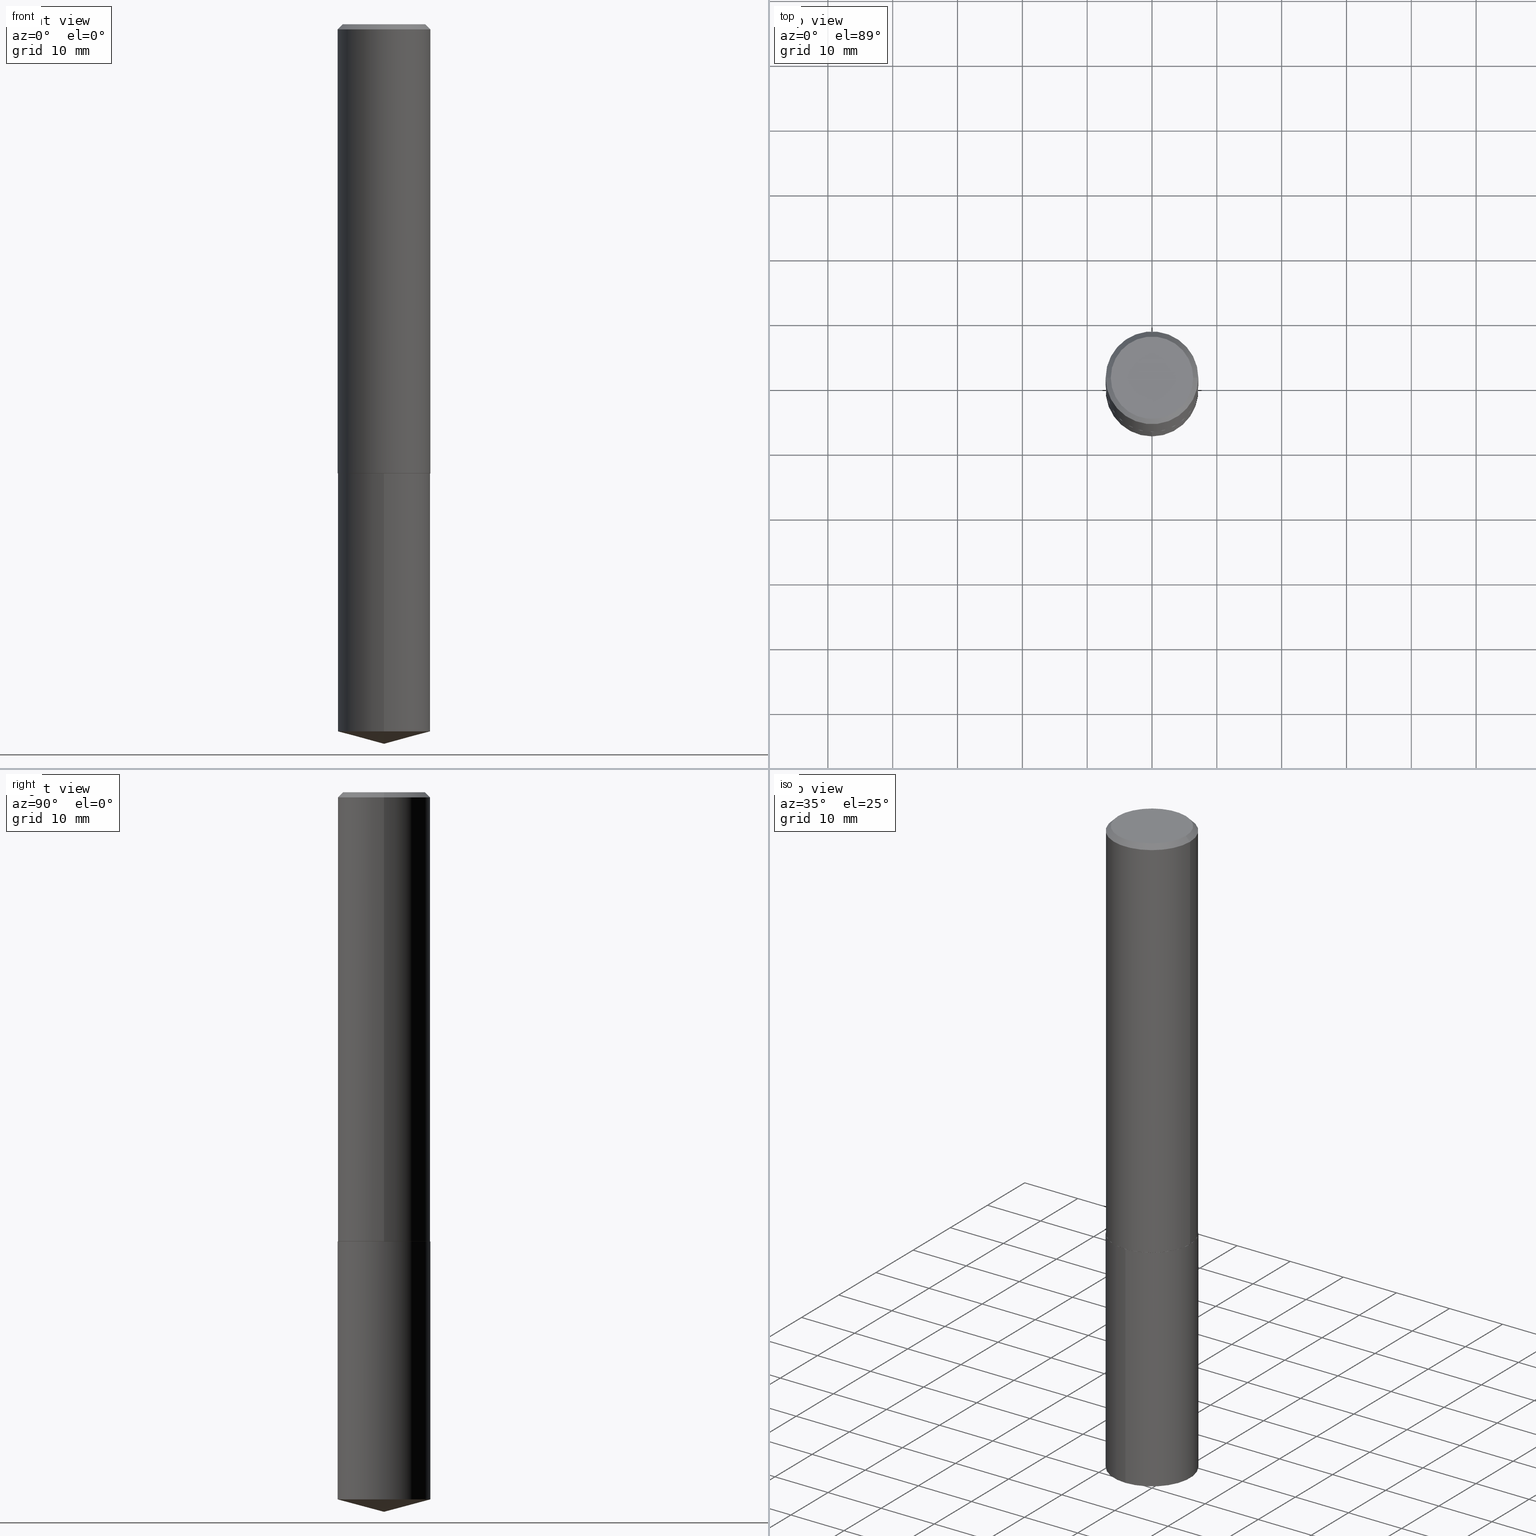
[diagram: canonical four-view strip — front | top / right | iso, engineering-drawing reading convention]
A machine part, canonical four-view strip (front | top / right | iso — engineering-drawing reading convention). The complete STEP part file that produces these views, byte-faithful:
ISO-10303-21;
HEADER;
FILE_DESCRIPTION (( 'STEP AP203' ),
    '1' );
FILE_NAME ('69051.STEP',
    '2024-04-23T14:41:40',
    ( '' ),
    ( '' ),
    'SwSTEP 2.0',
    'SolidWorks 2023',
    '' );
FILE_SCHEMA (( 'CONFIG_CONTROL_DESIGN' ));
ENDSEC;

DATA;
#1 = AXIS2_PLACEMENT_3D ( 'NONE', #7, #262, #134 ) ;
#2 = DIRECTION ( 'NONE',  ( -2.445468806185136597E-29, 3.491481338843145583E-15, 1.000000000000000000 ) ) ;
#3 = ORIENTED_EDGE ( 'NONE', *, *, #385, .T. ) ;
#4 = EDGE_CURVE ( 'NONE', #86, #69, #113, .T. ) ;
#5 = FACE_OUTER_BOUND ( 'NONE', #210, .T. ) ;
#6 = EDGE_LOOP ( 'NONE', ( #276, #297, #321, #130 ) ) ;
#7 = CARTESIAN_POINT ( 'NONE',  ( 6.672217090795527604E-29, -9.526157684899640905E-15, -2.728400000000000158 ) ) ;
#8 = DIRECTION ( 'NONE',  ( 1.000000000000000000, -6.982962677686265922E-15, 4.876176775795935793E-29 ) ) ;
#9 = CIRCLE ( 'NONE', #259, 0.2815000000000003055 ) ;
#10 = ORIENTED_EDGE ( 'NONE', *, *, #344, .F. ) ;
#11 = DIRECTION ( 'NONE',  ( -0.7071067811865452413, 2.468850131082233000E-15, -0.7071067811865497932 ) ) ;
#12 = DIRECTION ( 'NONE',  ( 2.445468806185136597E-29, -3.491481338843145583E-15, -1.000000000000000000 ) ) ;
#13 = EDGE_LOOP ( 'NONE', ( #50, #159, #10, #136 ) ) ;
#14 = CARTESIAN_POINT ( 'NONE',  ( -8.834764860432524555E-48, 1.261370276539608758E-33, 3.612708057484696673E-19 ) ) ;
#15 = AXIS2_PLACEMENT_3D ( 'NONE', #346, #114, #107 ) ;
#16 = PERSON_AND_ORGANIZATION ( #179, #362 ) ;
#17 = ORIENTED_EDGE ( 'NONE', *, *, #49, .F. ) ;
#18 = CARTESIAN_POINT ( 'NONE',  ( 2.000177801164786352E-15, 0.2814999999999849289, -4.294672302330640790 ) ) ;
#19 = ORIENTED_EDGE ( 'NONE', *, *, #238, .F. ) ;
#20 = EDGE_LOOP ( 'NONE', ( #208, #152, #140, #96 ) ) ;
#21 = MECHANICAL_CONTEXT ( 'NONE', #98, 'mechanical' ) ;
#22 = PRODUCT_DEFINITION_SHAPE ( 'NONE', 'NONE',  #151 ) ;
#23 = ORIENTED_EDGE ( 'NONE', *, *, #254, .T. ) ;
#24 = CARTESIAN_POINT ( 'NONE',  ( 0.2810000000000007492, -1.148837019732948507E-14, -2.728399999999999714 ) ) ;
#25 = PRODUCT_RELATED_PRODUCT_CATEGORY ( 'detail', '', ( #289 ) ) ;
#26 = LOCAL_TIME ( 10, 41, 40.00000000000000000, #300 ) ;
#27 = LINE ( 'NONE', #386, #250 ) ;
#28 =( NAMED_UNIT ( * ) PLANE_ANGLE_UNIT ( ) SI_UNIT ( $, .RADIAN. ) );
#29 = DIMENSIONAL_EXPONENTS ( 1.000000000000000000, 0.000000000000000000, 0.000000000000000000, 0.000000000000000000, 0.000000000000000000, 0.000000000000000000, 0.000000000000000000 ) ;
#30 = AXIS2_PLACEMENT_3D ( 'NONE', #231, #351, #87 ) ;
#31 = CC_DESIGN_SECURITY_CLASSIFICATION ( #218, ( #180 ) ) ;
#32 = EDGE_CURVE ( 'NONE', #337, #255, #216, .T. ) ;
#33 = CARTESIAN_POINT ( 'NONE',  ( 6.670994356392434802E-29, -9.524411944230218613E-15, -2.727899999999999991 ) ) ;
#34 = ORIENTED_EDGE ( 'NONE', *, *, #304, .F. ) ;
#35 = CC_DESIGN_PERSON_AND_ORGANIZATION_ASSIGNMENT ( #16, #303, ( #218 ) ) ;
#36 = PLANE ( 'NONE',  #126 ) ;
#37 = AXIS2_PLACEMENT_3D ( 'NONE', #243, #368, #162 ) ;
#38 = CARTESIAN_POINT ( 'NONE',  ( -1.965703993768578309E-15, -0.2815000000000149605, -4.294672302330638125 ) ) ;
#39 = ORIENTED_EDGE ( 'NONE', *, *, #32, .F. ) ;
#40 = ADVANCED_FACE ( 'NONE', ( #263 ), #83, .F. ) ;
#41 = DIRECTION ( 'NONE',  ( 1.000000000000000000, -6.982962677686265922E-15, 4.876176775795935793E-29 ) ) ;
#42 = ORIENTED_EDGE ( 'NONE', *, *, #183, .T. ) ;
#43 = CARTESIAN_POINT ( 'NONE',  ( 7.642090019328603538E-31, -1.091087918388490390E-16, -0.03125000000000021511 ) ) ;
#44 = VECTOR ( 'NONE', #260, 39.37007874015748143 ) ;
#45 = EDGE_LOOP ( 'NONE', ( #168, #342, #190, #121 ) ) ;
#46 = PERSON_AND_ORGANIZATION ( #179, #362 ) ;
#47 = FACE_OUTER_BOUND ( 'NONE', #13, .T. ) ;
#48 = CARTESIAN_POINT ( 'NONE',  ( -0.2814999999999999725, 1.856595201929834915E-15, -0.03125000000000021511 ) ) ;
#49 = EDGE_CURVE ( 'NONE', #77, #222, #296, .T. ) ;
#50 = ORIENTED_EDGE ( 'NONE', *, *, #84, .T. ) ;
#51 = PERSON_AND_ORGANIZATION ( #179, #362 ) ;
#52 = CARTESIAN_POINT ( 'NONE',  ( -0.2815000000000003055, -7.524234143065534418E-15, -2.727899999999999991 ) ) ;
#53 = AXIS2_PLACEMENT_3D ( 'NONE', #144, #81, #204 ) ;
#54 = PERSON_AND_ORGANIZATION_ROLE ( 'design_supplier' ) ;
#55 = CARTESIAN_POINT ( 'NONE',  ( 0.000000000000000000, 0.000000000000000000, 0.000000000000000000 ) ) ;
#56 = CARTESIAN_POINT ( 'NONE',  ( 7.642090019328603538E-31, -1.091087918388490390E-16, -0.03125000000000021511 ) ) ;
#57 = VECTOR ( 'NONE', #315, 39.37007874015748143 ) ;
#58 = EDGE_CURVE ( 'NONE', #337, #182, #131, .T. ) ;
#59 = ADVANCED_FACE ( 'NONE', ( #223 ), #217, .T. ) ;
#60 = CARTESIAN_POINT ( 'NONE',  ( -1.766952972086504911E-47, 2.522740553079217515E-33, 7.225416114969393346E-19 ) ) ;
#61 = AXIS2_PLACEMENT_3D ( 'NONE', #283, #232, #145 ) ;
#62 = AXIS2_PLACEMENT_3D ( 'NONE', #55, #91, #206 ) ;
#63 = CC_DESIGN_APPROVAL ( #135, ( #180 ) ) ;
#64 = DIRECTION ( 'NONE',  ( -2.445468806185136597E-29, 3.491481338843145583E-15, 1.000000000000000000 ) ) ;
#65 = CC_DESIGN_PERSON_AND_ORGANIZATION_ASSIGNMENT ( #139, #170, ( #180 ) ) ;
#66 = CARTESIAN_POINT ( 'NONE',  ( 0.000000000000000000, 0.000000000000000000, 0.000000000000000000 ) ) ;
#67 = DATE_TIME_ROLE ( 'classification_date' ) ;
#68 = DIRECTION ( 'NONE',  ( -2.445468806185136597E-29, 3.491481338843145583E-15, 1.000000000000000000 ) ) ;
#69 = VERTEX_POINT ( 'NONE', #281 ) ;
#70 = ORIENTED_EDGE ( 'NONE', *, *, #356, .T. ) ;
#71 = CONICAL_SURFACE ( 'NONE', #340, 0.2815000000000003055, 0.7853981633973459164 ) ;
#72 = CONICAL_SURFACE ( 'NONE', #324, 146.9311341562563484, 1.308996938995749426 ) ;
#73 = DIRECTION ( 'NONE',  ( -2.445355825187269101E-29, 3.491643134062571246E-15, 1.000000000000000000 ) ) ;
#74 = MANIFOLD_SOLID_BREP ( 'Body-Move/Copy2[1]', #369 ) ;
#75 = ORIENTED_EDGE ( 'NONE', *, *, #49, .T. ) ;
#76 = CARTESIAN_POINT ( 'NONE',  ( -0.2810000000000007492, -7.526883370239641675E-15, -2.728399999999999714 ) ) ;
#77 = VERTEX_POINT ( 'NONE', #38 ) ;
#78 = DIRECTION ( 'NONE',  ( -6.982962677686265922E-15, -1.000000000000000000, 3.510303681827608484E-15 ) ) ;
#79 = CALENDAR_DATE ( 2024, 23, 4 ) ;
#80 = CIRCLE ( 'NONE', #37, 0.2815000000000003055 ) ;
#81 = DIRECTION ( 'NONE',  ( -2.445355825187268821E-29, 3.491643134062571246E-15, 1.000000000000000000 ) ) ;
#82 = CC_DESIGN_APPROVAL ( #165, ( #151 ) ) ;
#83 = PLANE ( 'NONE',  #198 ) ;
#84 = EDGE_CURVE ( 'NONE', #182, #279, #80, .T. ) ;
#85 = FACE_OUTER_BOUND ( 'NONE', #150, .T. ) ;
#86 = VERTEX_POINT ( 'NONE', #129 ) ;
#87 = DIRECTION ( 'NONE',  ( -6.982962677686265922E-15, -1.000000000000000000, 3.881844395970533976E-15 ) ) ;
#88 = COORDINATED_UNIVERSAL_TIME_OFFSET ( 5, 0, .BEHIND. ) ;
#89 = EDGE_CURVE ( 'NONE', #86, #233, #309, .T. ) ;
#90 = CONICAL_SURFACE ( 'NONE', #118, 0.2814999999999999725, 0.7853981633974450594 ) ;
#91 = DIRECTION ( 'NONE',  ( 0.000000000000000000, 0.000000000000000000, 1.000000000000000000 ) ) ;
#92 = EDGE_LOOP ( 'NONE', ( #349, #23 ) ) ;
#93 = PERSON_AND_ORGANIZATION ( #179, #362 ) ;
#94 = LENGTH_MEASURE_WITH_UNIT ( LENGTH_MEASURE( 0.02539999999999999897 ), #327 );
#95 = CLOSED_SHELL ( 'NONE', ( #147, #271, #109, #40, #268, #117, #220, #274 ) ) ;
#96 = ORIENTED_EDGE ( 'NONE', *, *, #304, .T. ) ;
#97 = APPLICATION_CONTEXT ( 'configuration controlled 3d designs of mechanical parts and assemblies' ) ;
#98 = APPLICATION_CONTEXT ( 'configuration controlled 3d designs of mechanical parts and assemblies' ) ;
#99 = AXIS2_PLACEMENT_3D ( 'NONE', #299, #269, #146 ) ;
#100 = APPROVAL_PERSON_ORGANIZATION ( #125, #330, #157 ) ;
#101 = CARTESIAN_POINT ( 'NONE',  ( 6.670994356392434802E-29, -9.524411944230218613E-15, -2.727899999999999991 ) ) ;
#102 = DIRECTION ( 'NONE',  ( 2.445468806185136597E-29, -3.491481338843145583E-15, -1.000000000000000000 ) ) ;
#103 = DIRECTION ( 'NONE',  ( 2.445355825187268541E-29, -3.491643134062571246E-15, -1.000000000000000000 ) ) ;
#104 = DIRECTION ( 'NONE',  ( -2.445355825187268821E-29, 3.491643134062571246E-15, 1.000000000000000000 ) ) ;
#105 = PLANE ( 'NONE',  #333 ) ;
#106 = CARTESIAN_POINT ( 'NONE',  ( 1.050231018912923150E-28, -1.499502161540478992E-14, -4.294672302330639901 ) ) ;
#107 = DIRECTION ( 'NONE',  ( -6.982962677686265922E-15, -1.000000000000000000, 3.881844395970533976E-15 ) ) ;
#108 = ORIENTED_EDGE ( 'NONE', *, *, #356, .F. ) ;
#109 = ADVANCED_FACE ( 'NONE', ( #5 ), #71, .T. ) ;
#110 = CYLINDRICAL_SURFACE ( 'NONE', #242, 0.2815000000000001390 ) ;
#111 = AXIS2_PLACEMENT_3D ( 'NONE', #286, #12, #288 ) ;
#112 = DIRECTION ( 'NONE',  ( -2.445355825187269101E-29, 3.491643134062571246E-15, 1.000000000000000000 ) ) ;
#113 = LINE ( 'NONE', #257, #301 ) ;
#114 = DIRECTION ( 'NONE',  ( -2.445355825187268821E-29, 3.491643134062571246E-15, 1.000000000000000000 ) ) ;
#115 = COORDINATED_UNIVERSAL_TIME_OFFSET ( 5, 0, .BEHIND. ) ;
#116 = CIRCLE ( 'NONE', #99, 0.2502499999999999725 ) ;
#117 = ADVANCED_FACE ( 'NONE', ( #155 ), #219, .T. ) ;
#118 = AXIS2_PLACEMENT_3D ( 'NONE', #275, #102, #339 ) ;
#119 = EDGE_CURVE ( 'NONE', #222, #77, #191, .T. ) ;
#120 = DIRECTION ( 'NONE',  ( -6.982962677686265922E-15, -1.000000000000000000, 3.510303681827608484E-15 ) ) ;
#121 = ORIENTED_EDGE ( 'NONE', *, *, #154, .F. ) ;
#122 = ORIENTED_EDGE ( 'NONE', *, *, #212, .F. ) ;
#123 = DIRECTION ( 'NONE',  ( 1.000000000000000000, -6.982962677686265922E-15, 4.876176775795935793E-29 ) ) ;
#124 = EDGE_LOOP ( 'NONE', ( #122, #354, #316, #34 ) ) ;
#125 = PERSON_AND_ORGANIZATION ( #179, #362 ) ;
#126 = AXIS2_PLACEMENT_3D ( 'NONE', #158, #103, #221 ) ;
#127 = FACE_OUTER_BOUND ( 'NONE', #92, .T. ) ;
#128 = EDGE_CURVE ( 'NONE', #182, #69, #272, .T. ) ;
#129 = CARTESIAN_POINT ( 'NONE',  ( 0.2502499999999999725, -1.878589301076930179E-15, 7.225416115096182129E-19 ) ) ;
#130 = ORIENTED_EDGE ( 'NONE', *, *, #254, .F. ) ;
#131 = LINE ( 'NONE', #225, #387 ) ;
#132 = ORIENTED_EDGE ( 'NONE', *, *, #89, .T. ) ;
#133 = LINE ( 'NONE', #169, #44 ) ;
#134 = DIRECTION ( 'NONE',  ( -6.982962677686265922E-15, -1.000000000000000000, 3.881844395970533976E-15 ) ) ;
#135 = APPROVAL ( #287, 'UNSPECIFIED' ) ;
#136 = ORIENTED_EDGE ( 'NONE', *, *, #128, .F. ) ;
#137 = CARTESIAN_POINT ( 'NONE',  ( 6.672217090795526483E-29, -9.526157684899637750E-15, -2.728399999999999714 ) ) ;
#138 = ORIENTED_EDGE ( 'NONE', *, *, #310, .F. ) ;
#139 = PERSON_AND_ORGANIZATION ( #179, #362 ) ;
#140 = ORIENTED_EDGE ( 'NONE', *, *, #310, .T. ) ;
#141 = UNCERTAINTY_MEASURE_WITH_UNIT (LENGTH_MEASURE( 1.000000000000000082E-05 ), #384, 'distance_accuracy_value', 'NONE');
#142 = AXIS2_PLACEMENT_3D ( 'NONE', #60, #68, #277 ) ;
#143 = LINE ( 'NONE', #253, #57 ) ;
#144 = CARTESIAN_POINT ( 'NONE',  ( 6.672217090795527604E-29, -9.526157684899640905E-15, -2.728400000000000158 ) ) ;
#145 = DIRECTION ( 'NONE',  ( 1.000000000000000000, -6.982962677686269077E-15, 0.000000000000000000 ) ) ;
#146 = DIRECTION ( 'NONE',  ( 1.000000000000000000, -6.982962677686266711E-15, 4.876199892921953804E-29 ) ) ;
#147 = ADVANCED_FACE ( 'NONE', ( #367 ), #90, .T. ) ;
#148 = AXIS2_PLACEMENT_3D ( 'NONE', #137, #256, #228 ) ;
#149 = LOCAL_TIME ( 10, 41, 40.00000000000000000, #115 ) ;
#150 = EDGE_LOOP ( 'NONE', ( #108, #285, #213 ) ) ;
#151 = PRODUCT_DEFINITION ( 'UNKNOWN', '', #180, #352 ) ;
#152 = ORIENTED_EDGE ( 'NONE', *, *, #385, .F. ) ;
#153 = AXIS2_PLACEMENT_3D ( 'NONE', #156, #104, #365 ) ;
#154 = EDGE_CURVE ( 'NONE', #279, #182, #9, .T. ) ;
#155 = FACE_OUTER_BOUND ( 'NONE', #124, .T. ) ;
#156 = CARTESIAN_POINT ( 'NONE',  ( 1.050231018912923150E-28, -1.499502161540478992E-14, -4.294672302330639901 ) ) ;
#157 = APPROVAL_ROLE ( '' ) ;
#158 = CARTESIAN_POINT ( 'NONE',  ( 6.672217090795527604E-29, -9.526157684899640905E-15, -2.728400000000000158 ) ) ;
#159 = ORIENTED_EDGE ( 'NONE', *, *, #212, .T. ) ;
#160 = CARTESIAN_POINT ( 'NONE',  ( 2.000177801164748486E-15, 0.2814999999999904801, -2.728400000000001491 ) ) ;
#161 = DATE_AND_TIME ( #163, #209 ) ;
#162 = DIRECTION ( 'NONE',  ( 1.000000000000000000, -6.982962677686264344E-15, 0.000000000000000000 ) ) ;
#163 = CALENDAR_DATE ( 2024, 23, 4 ) ;
#164 = DIRECTION ( 'NONE',  ( -2.445468806185136597E-29, 3.491481338843145583E-15, 1.000000000000000000 ) ) ;
#165 = APPROVAL ( #355, 'UNSPECIFIED' ) ;
#166 = VECTOR ( 'NONE', #112, 39.37007874015748143 ) ;
#167 = DIRECTION ( 'NONE',  ( 1.000000000000000000, -6.982962677686267499E-15, 0.000000000000000000 ) ) ;
#168 = ORIENTED_EDGE ( 'NONE', *, *, #203, .F. ) ;
#169 = CARTESIAN_POINT ( 'NONE',  ( -0.2815000000000003055, -7.524234143065534418E-15, -2.727899999999999991 ) ) ;
#170 = PERSON_AND_ORGANIZATION_ROLE ( 'creator' ) ;
#171 = ORIENTED_EDGE ( 'NONE', *, *, #84, .F. ) ;
#172 = LINE ( 'NONE', #380, #166 ) ;
#173 = SECURITY_CLASSIFICATION_LEVEL ( 'unclassified' ) ;
#174 = CARTESIAN_POINT ( 'NONE',  ( 1.068644949165088311E-28, -1.525882966016684285E-14, -4.370099999999999874 ) ) ;
#175 = ADVANCED_FACE ( 'NONE', ( #127 ), #36, .F. ) ;
#176 = DIRECTION ( 'NONE',  ( 1.000000000000000000, -6.982962677686267499E-15, 0.000000000000000000 ) ) ;
#177 = DIRECTION ( 'NONE',  ( -2.445468806185136597E-29, 3.491481338843145583E-15, 1.000000000000000000 ) ) ;
#178 = CC_DESIGN_PERSON_AND_ORGANIZATION_ASSIGNMENT ( #215, #357, ( #289 ) ) ;
#179 = PERSON ( 'UNSPECIFIED', 'UNSPECIFIED', 'UNSPECIFIED', ('UNSPECIFIED'), ('UNSPECIFIED'), ('UNSPECIFIED') ) ;
#180 = PRODUCT_DEFINITION_FORMATION_WITH_SPECIFIED_SOURCE ( 'ANY', '', #289, .NOT_KNOWN. ) ;
#181 = APPROVAL_ROLE ( '' ) ;
#182 = VERTEX_POINT ( 'NONE', #189 ) ;
#183 = EDGE_CURVE ( 'NONE', #222, #375, #308, .T. ) ;
#184 = ADVANCED_BREP_SHAPE_REPRESENTATION ( '69051', ( #74, #205, #62 ), #317 ) ;
#185 = AXIS2_PLACEMENT_3D ( 'NONE', #66, #2, #123 ) ;
#186 = DIRECTION ( 'NONE',  ( 1.000000000000000000, -6.982962677686264344E-15, 0.000000000000000000 ) ) ;
#187 = DIRECTION ( 'NONE',  ( -2.445468806185136597E-29, 3.491481338843145583E-15, 1.000000000000000000 ) ) ;
#188 = ADVANCED_FACE ( 'NONE', ( #193 ), #200, .T. ) ;
#189 = CARTESIAN_POINT ( 'NONE',  ( 0.2815000000000003055, -1.149011593799890421E-14, -2.727899999999999991 ) ) ;
#190 = ORIENTED_EDGE ( 'NONE', *, *, #58, .T. ) ;
#191 = CIRCLE ( 'NONE', #153, 0.2814999999999999725 ) ;
#192 = VERTEX_POINT ( 'NONE', #345 ) ;
#193 = FACE_OUTER_BOUND ( 'NONE', #360, .T. ) ;
#194 = DIRECTION ( 'NONE',  ( -6.745023994389841499E-15, -0.9659258262890679791, 0.2588190451025219607 ) ) ;
#195 = ORIENTED_EDGE ( 'NONE', *, *, #344, .T. ) ;
#196 = CARTESIAN_POINT ( 'NONE',  ( 6.670994356392434802E-29, -9.524411944230218613E-15, -2.727899999999999991 ) ) ;
#197 = EDGE_LOOP ( 'NONE', ( #314, #295, #195, #138 ) ) ;
#198 = AXIS2_PLACEMENT_3D ( 'NONE', #325, #382, #8 ) ;
#199 = APPROVAL_PERSON_ORGANIZATION ( #329, #165, #181 ) ;
#200 = CYLINDRICAL_SURFACE ( 'NONE', #1, 0.2814999999999999725 ) ;
#201 = DATE_TIME_ROLE ( 'creation_date' ) ;
#202 = DIRECTION ( 'NONE',  ( -2.445468806185136597E-29, 3.491481338843145583E-15, 1.000000000000000000 ) ) ;
#203 = EDGE_CURVE ( 'NONE', #255, #279, #133, .T. ) ;
#204 = DIRECTION ( 'NONE',  ( -6.982962677686265922E-15, -1.000000000000000000, 3.881844395970533976E-15 ) ) ;
#205 = MANIFOLD_SOLID_BREP ( 'Body-Move/Copy2[2]', #95 ) ;
#206 = DIRECTION ( 'NONE',  ( 1.000000000000000000, 0.000000000000000000, 0.000000000000000000 ) ) ;
#207 = AXIS2_PLACEMENT_3D ( 'NONE', #43, #202, #167 ) ;
#208 = ORIENTED_EDGE ( 'NONE', *, *, #4, .F. ) ;
#209 = LOCAL_TIME ( 10, 41, 40.00000000000000000, #280 ) ;
#210 = EDGE_LOOP ( 'NONE', ( #261, #245, #171, #373 ) ) ;
#211 = DATE_AND_TIME ( #241, #26 ) ;
#212 = EDGE_CURVE ( 'NONE', #279, #192, #143, .T. ) ;
#213 = ORIENTED_EDGE ( 'NONE', *, *, #119, .F. ) ;
#214 = CALENDAR_DATE ( 2024, 23, 4 ) ;
#215 = PERSON_AND_ORGANIZATION ( #179, #362 ) ;
#216 = CIRCLE ( 'NONE', #61, 0.2810000000000007492 ) ;
#217 = CONICAL_SURFACE ( 'NONE', #244, 146.9311341562563484, 1.308996938995749426 ) ;
#218 = SECURITY_CLASSIFICATION ( '', '', #173 ) ;
#219 = CYLINDRICAL_SURFACE ( 'NONE', #185, 0.2815000000000001390 ) ;
#220 = ADVANCED_FACE ( 'NONE', ( #374 ), #266, .T. ) ;
#221 = DIRECTION ( 'NONE',  ( 6.982962677686265922E-15, 1.000000000000000000, -3.491643134062571246E-15 ) ) ;
#222 = VERTEX_POINT ( 'NONE', #18 ) ;
#223 = FACE_OUTER_BOUND ( 'NONE', #265, .T. ) ;
#224 = VECTOR ( 'NONE', #389, 39.37007874015748143 ) ;
#225 = CARTESIAN_POINT ( 'NONE',  ( 0.2815000000000003055, -1.149011593799890421E-14, -2.727899999999999991 ) ) ;
#226 = CARTESIAN_POINT ( 'NONE',  ( -8.558709363632008561E-28, 1.222078769024835025E-13, 34.99997874015748067 ) ) ;
#227 = DATE_AND_TIME ( #214, #298 ) ;
#228 = DIRECTION ( 'NONE',  ( 1.000000000000000000, -6.982962677686269077E-15, 0.000000000000000000 ) ) ;
#229 = VECTOR ( 'NONE', #73, 39.37007874015748143 ) ;
#230 = FACE_OUTER_BOUND ( 'NONE', #363, .T. ) ;
#231 = CARTESIAN_POINT ( 'NONE',  ( 6.672217090795527604E-29, -9.526157684899640905E-15, -2.728400000000000158 ) ) ;
#232 = DIRECTION ( 'NONE',  ( -2.445468806185136597E-29, 3.491481338843145583E-15, 1.000000000000000000 ) ) ;
#233 = VERTEX_POINT ( 'NONE', #381 ) ;
#234 = APPROVAL_DATE_TIME ( #211, #165 ) ;
#235 = ORIENTED_EDGE ( 'NONE', *, *, #240, .F. ) ;
#236 = CARTESIAN_POINT ( 'NONE',  ( 2.000177801164787141E-15, 0.2814999999999904801, -2.728400000000001491 ) ) ;
#237 = CIRCLE ( 'NONE', #148, 0.2810000000000007492 ) ;
#238 = EDGE_CURVE ( 'NONE', #370, #375, #371, .T. ) ;
#239 = APPLICATION_PROTOCOL_DEFINITION ( 'international standard', 'config_control_design', 1994, #98 ) ;
#240 = EDGE_CURVE ( 'NONE', #255, #337, #237, .T. ) ;
#241 = CALENDAR_DATE ( 2024, 23, 4 ) ;
#242 = AXIS2_PLACEMENT_3D ( 'NONE', #251, #313, #41 ) ;
#243 = CARTESIAN_POINT ( 'NONE',  ( 6.670994356392434802E-29, -9.524411944230218613E-15, -2.727899999999999991 ) ) ;
#244 = AXIS2_PLACEMENT_3D ( 'NONE', #336, #305, #120 ) ;
#245 = ORIENTED_EDGE ( 'NONE', *, *, #203, .T. ) ;
#246 = CIRCLE ( 'NONE', #284, 0.2814999999999999725 ) ;
#247 = CC_DESIGN_PERSON_AND_ORGANIZATION_ASSIGNMENT ( #51, #54, ( #180 ) ) ;
#248 = CARTESIAN_POINT ( 'NONE',  ( 0.2815000000000001390, -1.965703993768684805E-15, 1.372643762386556638E-29 ) ) ;
#249 = DIRECTION ( 'NONE',  ( 0.7071067811864750752, -2.468850131081498176E-15, 0.7071067811866199593 ) ) ;
#250 = VECTOR ( 'NONE', #267, 39.37007874015748143 ) ;
#251 = CARTESIAN_POINT ( 'NONE',  ( 0.000000000000000000, 0.000000000000000000, 0.000000000000000000 ) ) ;
#252 = ORIENTED_EDGE ( 'NONE', *, *, #264, .F. ) ;
#253 = CARTESIAN_POINT ( 'NONE',  ( -0.2815000000000001390, 2.000177801164683011E-15, -1.384680227906756714E-29 ) ) ;
#254 = EDGE_CURVE ( 'NONE', #375, #370, #388, .T. ) ;
#255 = VERTEX_POINT ( 'NONE', #76 ) ;
#256 = DIRECTION ( 'NONE',  ( -2.445468806185136597E-29, 3.491481338843145583E-15, 1.000000000000000000 ) ) ;
#257 = CARTESIAN_POINT ( 'NONE',  ( 0.2814999999999999725, -2.040338978211535305E-15, -0.03125000000000021511 ) ) ;
#258 = VERTEX_POINT ( 'NONE', #174 ) ;
#259 = AXIS2_PLACEMENT_3D ( 'NONE', #101, #187, #306 ) ;
#260 = DIRECTION ( 'NONE',  ( -0.7071067811864750752, 7.493145998870092258E-15, 0.7071067811866199593 ) ) ;
#261 = ORIENTED_EDGE ( 'NONE', *, *, #32, .T. ) ;
#262 = DIRECTION ( 'NONE',  ( -2.445355825187268821E-29, 3.491643134062571246E-15, 1.000000000000000000 ) ) ;
#263 = FACE_OUTER_BOUND ( 'NONE', #278, .T. ) ;
#264 = EDGE_CURVE ( 'NONE', #258, #77, #343, .T. ) ;
#265 = EDGE_LOOP ( 'NONE', ( #252, #70, #17 ) ) ;
#266 = CONICAL_SURFACE ( 'NONE', #111, 0.2814999999999999725, 0.7853981633974450594 ) ;
#267 = DIRECTION ( 'NONE',  ( 6.863315791527695837E-15, 0.9659258262890698665, 0.2588190451025151884 ) ) ;
#268 = ADVANCED_FACE ( 'NONE', ( #377 ), #341, .T. ) ;
#269 = DIRECTION ( 'NONE',  ( -2.445468806185136597E-29, 3.491481338843145583E-15, 1.000000000000000000 ) ) ;
#270 = CC_DESIGN_APPROVAL ( #330, ( #218 ) ) ;
#271 = ADVANCED_FACE ( 'NONE', ( #47 ), #110, .T. ) ;
#272 = LINE ( 'NONE', #248, #224 ) ;
#273 = DATE_AND_TIME ( #364, #312 ) ;
#274 = ADVANCED_FACE ( 'NONE', ( #230 ), #105, .F. ) ;
#275 = CARTESIAN_POINT ( 'NONE',  ( 7.642090019328603538E-31, -1.091087918388490390E-16, -0.03125000000000021511 ) ) ;
#276 = ORIENTED_EDGE ( 'NONE', *, *, #183, .F. ) ;
#277 = DIRECTION ( 'NONE',  ( 1.000000000000000000, -6.982962677686266711E-15, 4.876199892921953804E-29 ) ) ;
#278 = EDGE_LOOP ( 'NONE', ( #39, #235 ) ) ;
#279 = VERTEX_POINT ( 'NONE', #52 ) ;
#280 = COORDINATED_UNIVERSAL_TIME_OFFSET ( 5, 0, .BEHIND. ) ;
#281 = CARTESIAN_POINT ( 'NONE',  ( 0.2814999999999999725, -2.074812785607533117E-15, -0.03125000000000021511 ) ) ;
#282 = DIRECTION ( 'NONE',  ( -2.445355825187268821E-29, 3.491643134062571246E-15, 1.000000000000000000 ) ) ;
#283 = CARTESIAN_POINT ( 'NONE',  ( 6.672217090795526483E-29, -9.526157684899637750E-15, -2.728399999999999714 ) ) ;
#284 = AXIS2_PLACEMENT_3D ( 'NONE', #56, #177, #176 ) ;
#285 = ORIENTED_EDGE ( 'NONE', *, *, #264, .T. ) ;
#286 = CARTESIAN_POINT ( 'NONE',  ( 7.642090019328603538E-31, -1.091087918388490390E-16, -0.03125000000000021511 ) ) ;
#287 = APPROVAL_STATUS ( 'not_yet_approved' ) ;
#288 = DIRECTION ( 'NONE',  ( -1.000000000000000000, 6.982962677686267499E-15, 0.000000000000000000 ) ) ;
#289 = PRODUCT ( '69051', '69051', '', ( #21 ) ) ;
#290 = ADVANCED_FACE ( 'NONE', ( #85 ), #72, .T. ) ;
#291 = ORIENTED_EDGE ( 'NONE', *, *, #318, .F. ) ;
#292 = CYLINDRICAL_SURFACE ( 'NONE', #30, 0.2814999999999999725 ) ;
#293 = VECTOR ( 'NONE', #194, 39.37007874015748143 ) ;
#294 = FACE_OUTER_BOUND ( 'NONE', #6, .T. ) ;
#295 = ORIENTED_EDGE ( 'NONE', *, *, #4, .T. ) ;
#296 = CIRCLE ( 'NONE', #378, 0.2814999999999999725 ) ;
#297 = ORIENTED_EDGE ( 'NONE', *, *, #119, .T. ) ;
#298 = LOCAL_TIME ( 10, 41, 40.00000000000000000, #88 ) ;
#299 = CARTESIAN_POINT ( 'NONE',  ( -1.766952972086504911E-47, 2.522740553079217515E-33, 7.225416114969393346E-19 ) ) ;
#300 = COORDINATED_UNIVERSAL_TIME_OFFSET ( 5, 0, .BEHIND. ) ;
#301 = VECTOR ( 'NONE', #347, 39.37007874015748143 ) ;
#302 = APPROVAL_PERSON_ORGANIZATION ( #46, #135, #376 ) ;
#303 = PERSON_AND_ORGANIZATION_ROLE ( 'classification_officer' ) ;
#304 = EDGE_CURVE ( 'NONE', #192, #69, #348, .T. ) ;
#305 = DIRECTION ( 'NONE',  ( -2.445355825187268821E-29, 3.491643134062571246E-15, 1.000000000000000000 ) ) ;
#306 = DIRECTION ( 'NONE',  ( 1.000000000000000000, -6.982962677686264344E-15, 0.000000000000000000 ) ) ;
#307 = SHAPE_DEFINITION_REPRESENTATION ( #22, #184 ) ;
#308 = LINE ( 'NONE', #160, #229 ) ;
#309 = CIRCLE ( 'NONE', #142, 0.2502499999999999725 ) ;
#310 = EDGE_CURVE ( 'NONE', #233, #192, #322, .T. ) ;
#311 = COORDINATED_UNIVERSAL_TIME_OFFSET ( 5, 0, .BEHIND. ) ;
#312 = LOCAL_TIME ( 10, 41, 40.00000000000000000, #311 ) ;
#313 = DIRECTION ( 'NONE',  ( -2.445468806185136597E-29, 3.491481338843145583E-15, 1.000000000000000000 ) ) ;
#314 = ORIENTED_EDGE ( 'NONE', *, *, #89, .F. ) ;
#315 = DIRECTION ( 'NONE',  ( -2.445468806185136877E-29, 3.491481338843145188E-15, 1.000000000000000000 ) ) ;
#316 = ORIENTED_EDGE ( 'NONE', *, *, #128, .T. ) ;
#317 =( GEOMETRIC_REPRESENTATION_CONTEXT ( 3 ) GLOBAL_UNCERTAINTY_ASSIGNED_CONTEXT ( ( #141 ) ) GLOBAL_UNIT_ASSIGNED_CONTEXT ( ( #384, #28, #383 ) ) REPRESENTATION_CONTEXT ( 'NONE', 'WORKASPACE' ) );
#318 = EDGE_CURVE ( 'NONE', #77, #370, #172, .T. ) ;
#319 = DIRECTION ( 'NONE',  ( 1.000000000000000000, -6.982962677686264344E-15, 0.000000000000000000 ) ) ;
#320 = DATE_AND_TIME ( #79, #149 ) ;
#321 = ORIENTED_EDGE ( 'NONE', *, *, #318, .T. ) ;
#322 = LINE ( 'NONE', #48, #328 ) ;
#323 = DIRECTION ( 'NONE',  ( 2.438088387897960049E-29, -3.491481338843145188E-15, -1.000000000000000000 ) ) ;
#324 = AXIS2_PLACEMENT_3D ( 'NONE', #226, #282, #78 ) ;
#325 = CARTESIAN_POINT ( 'NONE',  ( 1.037670317746063425E-28, -4.221122762541228378E-15, -2.728400000000000158 ) ) ;
#326 = PERSON_AND_ORGANIZATION_ROLE ( 'creator' ) ;
#327 =( LENGTH_UNIT ( ) NAMED_UNIT ( * ) SI_UNIT ( $, .METRE. ) );
#328 = VECTOR ( 'NONE', #11, 39.37007874015748143 ) ;
#329 = PERSON_AND_ORGANIZATION ( #179, #362 ) ;
#330 = APPROVAL ( #390, 'UNSPECIFIED' ) ;
#331 = ADVANCED_FACE ( 'NONE', ( #294 ), #292, .T. ) ;
#332 = DIRECTION ( 'NONE',  ( -2.445355825187268821E-29, 3.491643134062571246E-15, 1.000000000000000000 ) ) ;
#333 = AXIS2_PLACEMENT_3D ( 'NONE', #14, #323, #350 ) ;
#334 = APPROVAL_DATE_TIME ( #161, #330 ) ;
#335 = DIRECTION ( 'NONE',  ( -6.982962677686265922E-15, -1.000000000000000000, 3.881844395970533976E-15 ) ) ;
#336 = CARTESIAN_POINT ( 'NONE',  ( -8.558709363632008561E-28, 1.222078769024835025E-13, 34.99997874015748067 ) ) ;
#337 = VERTEX_POINT ( 'NONE', #24 ) ;
#338 = CC_DESIGN_DATE_AND_TIME_ASSIGNMENT ( #273, #67, ( #218 ) ) ;
#339 = DIRECTION ( 'NONE',  ( -1.000000000000000000, 6.982962677686267499E-15, 0.000000000000000000 ) ) ;
#340 = AXIS2_PLACEMENT_3D ( 'NONE', #33, #64, #186 ) ;
#341 = CONICAL_SURFACE ( 'NONE', #361, 0.2815000000000003055, 0.7853981633973459164 ) ;
#342 = ORIENTED_EDGE ( 'NONE', *, *, #240, .T. ) ;
#343 = LINE ( 'NONE', #372, #293 ) ;
#344 = EDGE_CURVE ( 'NONE', #69, #192, #246, .T. ) ;
#345 = CARTESIAN_POINT ( 'NONE',  ( -0.2814999999999999725, -2.816582566869850057E-15, -0.03125000000000021511 ) ) ;
#346 = CARTESIAN_POINT ( 'NONE',  ( 6.672217090795527604E-29, -9.526157684899640905E-15, -2.728400000000000158 ) ) ;
#347 = DIRECTION ( 'NONE',  ( 0.7071067811865452413, -7.319954787623248157E-15, -0.7071067811865497932 ) ) ;
#348 = CIRCLE ( 'NONE', #207, 0.2814999999999999725 ) ;
#349 = ORIENTED_EDGE ( 'NONE', *, *, #238, .T. ) ;
#350 = DIRECTION ( 'NONE',  ( -1.000000000000000000, 6.982962677686265922E-15, -4.876176775795935793E-29 ) ) ;
#351 = DIRECTION ( 'NONE',  ( -2.445355825187268821E-29, 3.491643134062571246E-15, 1.000000000000000000 ) ) ;
#352 = DESIGN_CONTEXT ( 'detailed design', #97, 'design' ) ;
#353 = APPLICATION_PROTOCOL_DEFINITION ( 'international standard', 'config_control_design', 1994, #97 ) ;
#354 = ORIENTED_EDGE ( 'NONE', *, *, #154, .T. ) ;
#355 = APPROVAL_STATUS ( 'not_yet_approved' ) ;
#356 = EDGE_CURVE ( 'NONE', #258, #222, #27, .T. ) ;
#357 = PERSON_AND_ORGANIZATION_ROLE ( 'design_owner' ) ;
#358 = CC_DESIGN_PERSON_AND_ORGANIZATION_ASSIGNMENT ( #93, #326, ( #151 ) ) ;
#359 = CARTESIAN_POINT ( 'NONE',  ( -1.965703993768616963E-15, -0.2815000000000095204, -2.728399999999999270 ) ) ;
#360 = EDGE_LOOP ( 'NONE', ( #75, #42, #19, #291 ) ) ;
#361 = AXIS2_PLACEMENT_3D ( 'NONE', #196, #164, #319 ) ;
#362 = ORGANIZATION ( 'UNSPECIFIED', 'UNSPECIFIED', '' ) ;
#363 = EDGE_LOOP ( 'NONE', ( #3, #132 ) ) ;
#364 = CALENDAR_DATE ( 2024, 23, 4 ) ;
#365 = DIRECTION ( 'NONE',  ( -6.982962677686265922E-15, -1.000000000000000000, 3.881844395970533976E-15 ) ) ;
#366 = CC_DESIGN_DATE_AND_TIME_ASSIGNMENT ( #227, #201, ( #151 ) ) ;
#367 = FACE_OUTER_BOUND ( 'NONE', #197, .T. ) ;
#368 = DIRECTION ( 'NONE',  ( -2.445468806185136597E-29, 3.491481338843145583E-15, 1.000000000000000000 ) ) ;
#369 = CLOSED_SHELL ( 'NONE', ( #188, #59, #290, #331, #175 ) ) ;
#370 = VERTEX_POINT ( 'NONE', #359 ) ;
#371 = CIRCLE ( 'NONE', #15, 0.2814999999999999725 ) ;
#372 = CARTESIAN_POINT ( 'NONE',  ( 1.068644949165088535E-28, -1.525882966016684285E-14, -4.370099999999999874 ) ) ;
#373 = ORIENTED_EDGE ( 'NONE', *, *, #58, .F. ) ;
#374 = FACE_OUTER_BOUND ( 'NONE', #20, .T. ) ;
#375 = VERTEX_POINT ( 'NONE', #236 ) ;
#376 = APPROVAL_ROLE ( '' ) ;
#377 = FACE_OUTER_BOUND ( 'NONE', #45, .T. ) ;
#378 = AXIS2_PLACEMENT_3D ( 'NONE', #106, #332, #335 ) ;
#379 = APPROVAL_DATE_TIME ( #320, #135 ) ;
#380 = CARTESIAN_POINT ( 'NONE',  ( -1.965703993768616963E-15, -0.2815000000000095204, -2.728399999999999270 ) ) ;
#381 = CARTESIAN_POINT ( 'NONE',  ( -0.2502499999999999725, 1.802040806010411548E-15, 7.225416114845277753E-19 ) ) ;
#382 = DIRECTION ( 'NONE',  ( -2.438088387897960049E-29, 3.491481338843145188E-15, 1.000000000000000000 ) ) ;
#383 =( NAMED_UNIT ( * ) SI_UNIT ( $, .STERADIAN. ) SOLID_ANGLE_UNIT ( ) );
#384 =( CONVERSION_BASED_UNIT ( 'INCH', #94 ) LENGTH_UNIT ( ) NAMED_UNIT ( #29 ) );
#385 = EDGE_CURVE ( 'NONE', #233, #86, #116, .T. ) ;
#386 = CARTESIAN_POINT ( 'NONE',  ( 1.068707141246631011E-28, -1.525794677601348190E-14, -4.370099999999999874 ) ) ;
#387 = VECTOR ( 'NONE', #249, 39.37007874015748143 ) ;
#388 = CIRCLE ( 'NONE', #53, 0.2814999999999999725 ) ;
#389 = DIRECTION ( 'NONE',  ( -2.445468806185136877E-29, 3.491481338843145188E-15, 1.000000000000000000 ) ) ;
#390 = APPROVAL_STATUS ( 'not_yet_approved' ) ;
ENDSEC;
END-ISO-10303-21;
